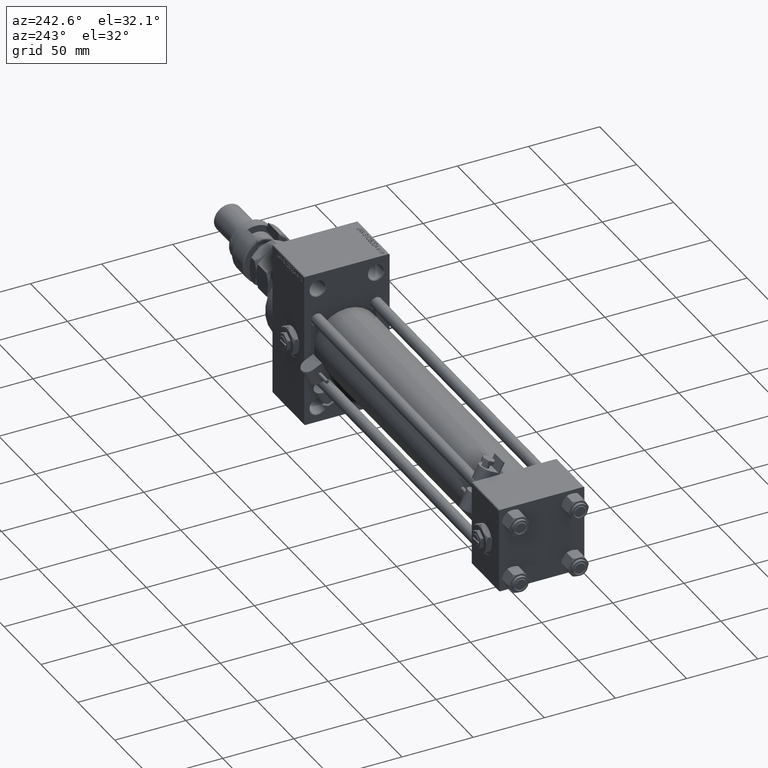
[diagram: clean part render]
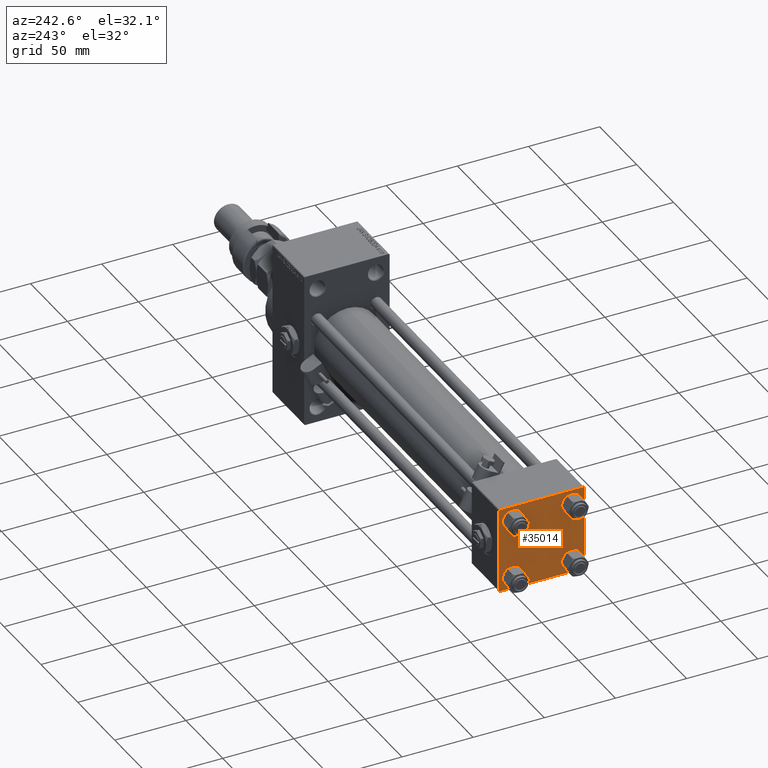
[diagram: same view with one face highlighted and labeled with its STEP entity id]
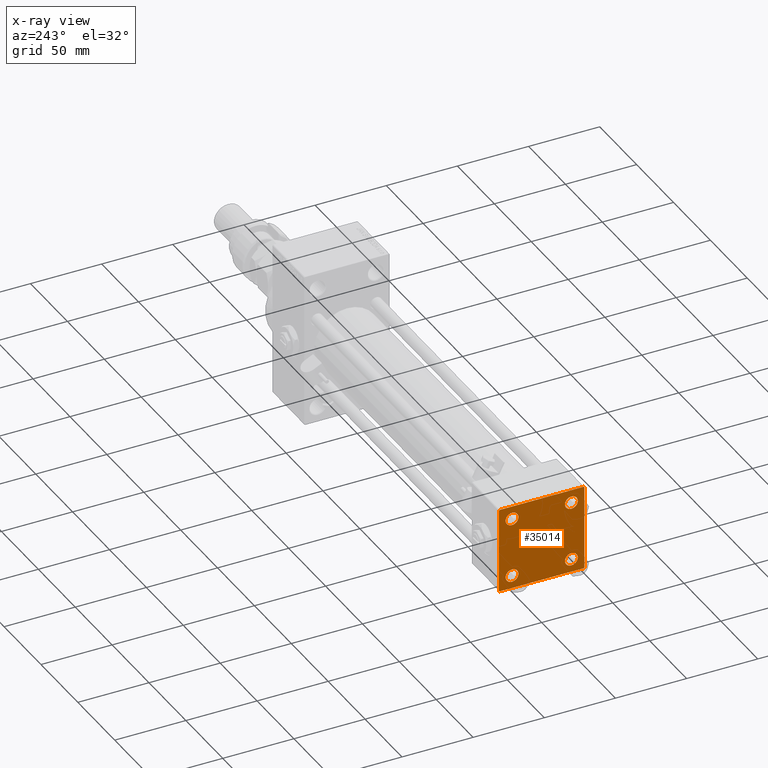
[diagram: x-ray of the same camera — body ghosted, the highlighted face saturated]
A machine part, auxiliary view. The second image highlights one B-rep face of the part: STEP entity #35014.
The next image is the same camera in x-ray: the body ghosted, the highlighted face saturated — about 0% of this face is hidden behind the body in this view.
In plain terms, the highlighted planar face has unit normal (-1, 0, 0).
Its self-contained STEP definition (entity closure, byte-faithful):
#338 = VERTEX_POINT ( 'NONE', #53155 ) ;
#1035 = EDGE_CURVE ( 'NONE', #338, #50972, #18073, .T. ) ;
#1045 = ORIENTED_EDGE ( 'NONE', *, *, #45553, .T. ) ;
#1279 = EDGE_LOOP ( 'NONE', ( #21714, #49911 ) ) ;
#1510 = AXIS2_PLACEMENT_3D ( 'NONE', #35918, #6595, #3358 ) ;
#1726 = VERTEX_POINT ( 'NONE', #35059 ) ;
#2532 = ORIENTED_EDGE ( 'NONE', *, *, #7141, .T. ) ;
#2562 = CARTESIAN_POINT ( 'NONE',  ( 0.000000000000000000, 29.99999999999999289, 29.50000000000000000 ) ) ;
#2712 = CARTESIAN_POINT ( 'NONE',  ( 0.000000000000000000, 29.74999999999957723, -29.75000000000040501 ) ) ;
#2732 = EDGE_CURVE ( 'NONE', #50972, #338, #15601, .T. ) ;
#2743 = FACE_BOUND ( 'NONE', #36303, .T. ) ;
#2821 = CARTESIAN_POINT ( 'NONE',  ( 0.000000000000000000, -20.84999999999999076, -25.35000000000002274 ) ) ;
#2918 = CIRCLE ( 'NONE', #14948, 4.500000000000017764 ) ;
#3287 = CARTESIAN_POINT ( 'NONE',  ( 0.000000000000000000, 0.000000000000000000, 0.000000000000000000 ) ) ;
#3358 = DIRECTION ( 'NONE',  ( 0.000000000000000000, 0.000000000000000000, 1.000000000000000000 ) ) ;
#3815 = DIRECTION ( 'NONE',  ( -0.000000000000000000, 0.000000000000000000, 1.000000000000000000 ) ) ;
#3890 = LINE ( 'NONE', #36716, #33050 ) ;
#4809 = CARTESIAN_POINT ( 'NONE',  ( 0.000000000000000000, -20.84999999999999076, -16.34999999999998721 ) ) ;
#4846 = DIRECTION ( 'NONE',  ( 0.000000000000000000, 0.000000000000000000, 1.000000000000000000 ) ) ;
#5019 = VECTOR ( 'NONE', #49708, 1000.000000000000000 ) ;
#6595 = DIRECTION ( 'NONE',  ( 1.000000000000000000, -0.000000000000000000, 0.000000000000000000 ) ) ;
#6962 = CARTESIAN_POINT ( 'NONE',  ( 0.000000000000000000, -20.84999999999999076, 25.35000000000002274 ) ) ;
#7141 = EDGE_CURVE ( 'NONE', #33892, #37845, #2918, .T. ) ;
#7287 = DIRECTION ( 'NONE',  ( 0.000000000000000000, 0.000000000000000000, 1.000000000000000000 ) ) ;
#8258 = VERTEX_POINT ( 'NONE', #2821 ) ;
#8266 = CARTESIAN_POINT ( 'NONE',  ( 0.000000000000000000, -20.84999999999999076, 16.34999999999998721 ) ) ;
#8704 = DIRECTION ( 'NONE',  ( 0.000000000000000000, 0.000000000000000000, -1.000000000000000000 ) ) ;
#8833 = DIRECTION ( 'NONE',  ( 1.000000000000000000, -0.000000000000000000, 0.000000000000000000 ) ) ;
#8963 = AXIS2_PLACEMENT_3D ( 'NONE', #3287, #40678, #3815 ) ;
#9258 = VECTOR ( 'NONE', #13808, 1000.000000000000114 ) ;
#9321 = EDGE_CURVE ( 'NONE', #15713, #1726, #3890, .T. ) ;
#9384 = AXIS2_PLACEMENT_3D ( 'NONE', #45865, #16564, #17606 ) ;
#9504 = CARTESIAN_POINT ( 'NONE',  ( 0.000000000000000000, -29.75000000000001066, -29.75000000000001066 ) ) ;
#9667 = VERTEX_POINT ( 'NONE', #28301 ) ;
#9978 = EDGE_LOOP ( 'NONE', ( #25561, #46119 ) ) ;
#10511 = LINE ( 'NONE', #43072, #25559 ) ;
#10992 = DIRECTION ( 'NONE',  ( 0.000000000000000000, 0.000000000000000000, -1.000000000000000000 ) ) ;
#11333 = LINE ( 'NONE', #2712, #49980 ) ;
#11370 = CARTESIAN_POINT ( 'NONE',  ( 0.000000000000000000, 29.49999999999999289, 30.00000000000000000 ) ) ;
#11724 = DIRECTION ( 'NONE',  ( 0.000000000000000000, 0.000000000000000000, 1.000000000000000000 ) ) ;
#12271 = DIRECTION ( 'NONE',  ( 0.000000000000000000, 0.000000000000000000, 1.000000000000000000 ) ) ;
#12473 = CARTESIAN_POINT ( 'NONE',  ( 0.000000000000000000, 20.84999999999999787, 16.34999999999998366 ) ) ;
#12616 = DIRECTION ( 'NONE',  ( 0.000000000000000000, 0.000000000000000000, 1.000000000000000000 ) ) ;
#12805 = ORIENTED_EDGE ( 'NONE', *, *, #46727, .F. ) ;
#13369 = ORIENTED_EDGE ( 'NONE', *, *, #44645, .T. ) ;
#13381 = LINE ( 'NONE', #17411, #5019 ) ;
#13732 = EDGE_CURVE ( 'NONE', #35994, #9667, #45127, .T. ) ;
#13808 = DIRECTION ( 'NONE',  ( 0.000000000000000000, -0.7071067811865474617, 0.7071067811865474617 ) ) ;
#13948 = LINE ( 'NONE', #42469, #48055 ) ;
#14948 = AXIS2_PLACEMENT_3D ( 'NONE', #25173, #41573, #12271 ) ;
#15601 = CIRCLE ( 'NONE', #45650, 4.500000000000017764 ) ;
#15635 = DIRECTION ( 'NONE',  ( -0.000000000000000000, -0.7071067811865574537, -0.7071067811865376918 ) ) ;
#15713 = VERTEX_POINT ( 'NONE', #38589 ) ;
#16438 = VERTEX_POINT ( 'NONE', #42768 ) ;
#16564 = DIRECTION ( 'NONE',  ( 1.000000000000000000, -0.000000000000000000, 0.000000000000000000 ) ) ;
#17411 = CARTESIAN_POINT ( 'NONE',  ( 0.000000000000000000, 29.99999999999999289, 30.00000000000000000 ) ) ;
#17606 = DIRECTION ( 'NONE',  ( 0.000000000000000000, 0.000000000000000000, 1.000000000000000000 ) ) ;
#18073 = CIRCLE ( 'NONE', #28410, 4.500000000000017764 ) ;
#18243 = DIRECTION ( 'NONE',  ( -0.000000000000000000, 0.7071067811865474617, 0.7071067811865474617 ) ) ;
#18659 = EDGE_CURVE ( 'NONE', #37950, #33435, #10511, .T. ) ;
#19159 = FACE_BOUND ( 'NONE', #9978, .T. ) ;
#19850 = CIRCLE ( 'NONE', #37054, 4.500000000000017764 ) ;
#19932 = EDGE_CURVE ( 'NONE', #42714, #16438, #47845, .T. ) ;
#21714 = ORIENTED_EDGE ( 'NONE', *, *, #23107, .T. ) ;
#22947 = CARTESIAN_POINT ( 'NONE',  ( 0.000000000000000000, 20.84999999999999787, -16.34999999999998366 ) ) ;
#23107 = EDGE_CURVE ( 'NONE', #33738, #8258, #37761, .T. ) ;
#23186 = CARTESIAN_POINT ( 'NONE',  ( 0.000000000000000000, -20.84999999999999076, -20.85000000000000497 ) ) ;
#23296 = EDGE_CURVE ( 'NONE', #32490, #42714, #47407, .T. ) ;
#23316 = EDGE_CURVE ( 'NONE', #8258, #33738, #19850, .T. ) ;
#24234 = DIRECTION ( 'NONE',  ( 1.000000000000000000, -0.000000000000000000, 0.000000000000000000 ) ) ;
#24271 = FACE_BOUND ( 'NONE', #1279, .T. ) ;
#24361 = CARTESIAN_POINT ( 'NONE',  ( 0.000000000000000000, 20.84999999999999787, 20.85000000000000142 ) ) ;
#25173 = CARTESIAN_POINT ( 'NONE',  ( 0.000000000000000000, -20.84999999999999076, 20.85000000000000497 ) ) ;
#25559 = VECTOR ( 'NONE', #50332, 1000.000000000000000 ) ;
#25561 = ORIENTED_EDGE ( 'NONE', *, *, #1035, .T. ) ;
#25893 = EDGE_CURVE ( 'NONE', #16438, #37950, #11333, .T. ) ;
#25898 = CARTESIAN_POINT ( 'NONE',  ( 0.000000000000000000, -29.49999999999998579, 29.99999999999999289 ) ) ;
#27074 = AXIS2_PLACEMENT_3D ( 'NONE', #52731, #24234, #7287 ) ;
#27230 = DIRECTION ( 'NONE',  ( 0.000000000000000000, 0.7071067811865474617, -0.7071067811865474617 ) ) ;
#27930 = CARTESIAN_POINT ( 'NONE',  ( 0.000000000000000000, 29.99999999999999289, 30.00000000000000000 ) ) ;
#28031 = FACE_BOUND ( 'NONE', #42895, .T. ) ;
#28301 = CARTESIAN_POINT ( 'NONE',  ( 0.000000000000000000, 20.84999999999999787, -25.35000000000001918 ) ) ;
#28410 = AXIS2_PLACEMENT_3D ( 'NONE', #41393, #8833, #12616 ) ;
#29888 = EDGE_CURVE ( 'NONE', #9667, #35994, #43167, .T. ) ;
#29944 = LINE ( 'NONE', #9504, #9258 ) ;
#31120 = AXIS2_PLACEMENT_3D ( 'NONE', #33362, #48737, #4846 ) ;
#31691 = VERTEX_POINT ( 'NONE', #25898 ) ;
#31769 = ORIENTED_EDGE ( 'NONE', *, *, #48967, .T. ) ;
#31789 = DIRECTION ( 'NONE',  ( 0.000000000000000000, 0.000000000000000000, 1.000000000000000000 ) ) ;
#32490 = VERTEX_POINT ( 'NONE', #11370 ) ;
#32952 = ORIENTED_EDGE ( 'NONE', *, *, #18659, .T. ) ;
#33050 = VECTOR ( 'NONE', #8704, 1000.000000000000000 ) ;
#33362 = CARTESIAN_POINT ( 'NONE',  ( 0.000000000000000000, 20.84999999999999787, -20.85000000000000142 ) ) ;
#33435 = VERTEX_POINT ( 'NONE', #45252 ) ;
#33738 = VERTEX_POINT ( 'NONE', #4809 ) ;
#33892 = VERTEX_POINT ( 'NONE', #8266 ) ;
#33954 = ORIENTED_EDGE ( 'NONE', *, *, #13732, .T. ) ;
#35014 = ADVANCED_FACE ( 'NONE', ( #2743, #24271, #28031, #19159, #52501 ), #35576, .T. ) ;
#35059 = CARTESIAN_POINT ( 'NONE',  ( 0.000000000000000000, -30.00000000000000000, -29.50000000000001776 ) ) ;
#35576 = PLANE ( 'NONE',  #8963 ) ;
#35918 = CARTESIAN_POINT ( 'NONE',  ( 0.000000000000000000, -20.84999999999999076, 20.85000000000000497 ) ) ;
#35994 = VERTEX_POINT ( 'NONE', #22947 ) ;
#36303 = EDGE_LOOP ( 'NONE', ( #13369, #2532 ) ) ;
#36716 = CARTESIAN_POINT ( 'NONE',  ( 0.000000000000000000, -30.00000000000000000, 29.99999999999999289 ) ) ;
#37054 = AXIS2_PLACEMENT_3D ( 'NONE', #23186, #39605, #31789 ) ;
#37599 = CIRCLE ( 'NONE', #1510, 4.500000000000017764 ) ;
#37761 = CIRCLE ( 'NONE', #9384, 4.500000000000017764 ) ;
#37845 = VERTEX_POINT ( 'NONE', #6962 ) ;
#37950 = VERTEX_POINT ( 'NONE', #39260 ) ;
#38248 = ORIENTED_EDGE ( 'NONE', *, *, #25893, .T. ) ;
#38589 = CARTESIAN_POINT ( 'NONE',  ( 0.000000000000000000, -30.00000000000000000, 29.49999999999999289 ) ) ;
#38940 = ORIENTED_EDGE ( 'NONE', *, *, #19932, .T. ) ;
#39260 = CARTESIAN_POINT ( 'NONE',  ( 0.000000000000000000, 29.49999999999997868, -30.00000000000000000 ) ) ;
#39605 = DIRECTION ( 'NONE',  ( 1.000000000000000000, -0.000000000000000000, 0.000000000000000000 ) ) ;
#40678 = DIRECTION ( 'NONE',  ( -1.000000000000000000, 0.000000000000000000, -0.000000000000000000 ) ) ;
#41322 = ORIENTED_EDGE ( 'NONE', *, *, #29888, .T. ) ;
#41393 = CARTESIAN_POINT ( 'NONE',  ( 0.000000000000000000, 20.84999999999999787, 20.85000000000000142 ) ) ;
#41573 = DIRECTION ( 'NONE',  ( 1.000000000000000000, -0.000000000000000000, 0.000000000000000000 ) ) ;
#42469 = CARTESIAN_POINT ( 'NONE',  ( -0.000000000000000000, -29.74999999999999645, 29.74999999999999645 ) ) ;
#42714 = VERTEX_POINT ( 'NONE', #2562 ) ;
#42768 = CARTESIAN_POINT ( 'NONE',  ( 0.000000000000000000, 29.99999999999999289, -29.50000000000000000 ) ) ;
#42895 = EDGE_LOOP ( 'NONE', ( #33954, #41322 ) ) ;
#43072 = CARTESIAN_POINT ( 'NONE',  ( 0.000000000000000000, 29.99999999999999289, -30.00000000000000000 ) ) ;
#43167 = CIRCLE ( 'NONE', #31120, 4.500000000000017764 ) ;
#44645 = EDGE_CURVE ( 'NONE', #37845, #33892, #37599, .T. ) ;
#45127 = CIRCLE ( 'NONE', #27074, 4.500000000000017764 ) ;
#45252 = CARTESIAN_POINT ( 'NONE',  ( 0.000000000000000000, -29.50000000000000000, -30.00000000000000711 ) ) ;
#45553 = EDGE_CURVE ( 'NONE', #33435, #1726, #29944, .T. ) ;
#45650 = AXIS2_PLACEMENT_3D ( 'NONE', #24361, #48579, #11724 ) ;
#45865 = CARTESIAN_POINT ( 'NONE',  ( 0.000000000000000000, -20.84999999999999076, -20.85000000000000497 ) ) ;
#46119 = ORIENTED_EDGE ( 'NONE', *, *, #2732, .T. ) ;
#46212 = VECTOR ( 'NONE', #10992, 1000.000000000000000 ) ;
#46727 = EDGE_CURVE ( 'NONE', #32490, #31691, #13381, .T. ) ;
#47347 = VECTOR ( 'NONE', #27230, 1000.000000000000114 ) ;
#47407 = LINE ( 'NONE', #47945, #47347 ) ;
#47845 = LINE ( 'NONE', #27930, #46212 ) ;
#47945 = CARTESIAN_POINT ( 'NONE',  ( 0.000000000000000000, 29.74999999999999645, 29.74999999999999645 ) ) ;
#48055 = VECTOR ( 'NONE', #18243, 1000.000000000000114 ) ;
#48579 = DIRECTION ( 'NONE',  ( 1.000000000000000000, -0.000000000000000000, 0.000000000000000000 ) ) ;
#48737 = DIRECTION ( 'NONE',  ( 1.000000000000000000, -0.000000000000000000, 0.000000000000000000 ) ) ;
#48967 = EDGE_CURVE ( 'NONE', #15713, #31691, #13948, .T. ) ;
#49708 = DIRECTION ( 'NONE',  ( 0.000000000000000000, -1.000000000000000000, -1.156482317317871725E-16 ) ) ;
#49888 = EDGE_LOOP ( 'NONE', ( #38940, #38248, #32952, #1045, #50018, #31769, #12805, #51674 ) ) ;
#49911 = ORIENTED_EDGE ( 'NONE', *, *, #23316, .T. ) ;
#49980 = VECTOR ( 'NONE', #15635, 999.9999999999998863 ) ;
#50018 = ORIENTED_EDGE ( 'NONE', *, *, #9321, .F. ) ;
#50332 = DIRECTION ( 'NONE',  ( 0.000000000000000000, -1.000000000000000000, -1.156482317317871725E-16 ) ) ;
#50972 = VERTEX_POINT ( 'NONE', #12473 ) ;
#51674 = ORIENTED_EDGE ( 'NONE', *, *, #23296, .T. ) ;
#52501 = FACE_OUTER_BOUND ( 'NONE', #49888, .T. ) ;
#52731 = CARTESIAN_POINT ( 'NONE',  ( 0.000000000000000000, 20.84999999999999787, -20.85000000000000142 ) ) ;
#53155 = CARTESIAN_POINT ( 'NONE',  ( 0.000000000000000000, 20.84999999999999787, 25.35000000000001918 ) ) ;